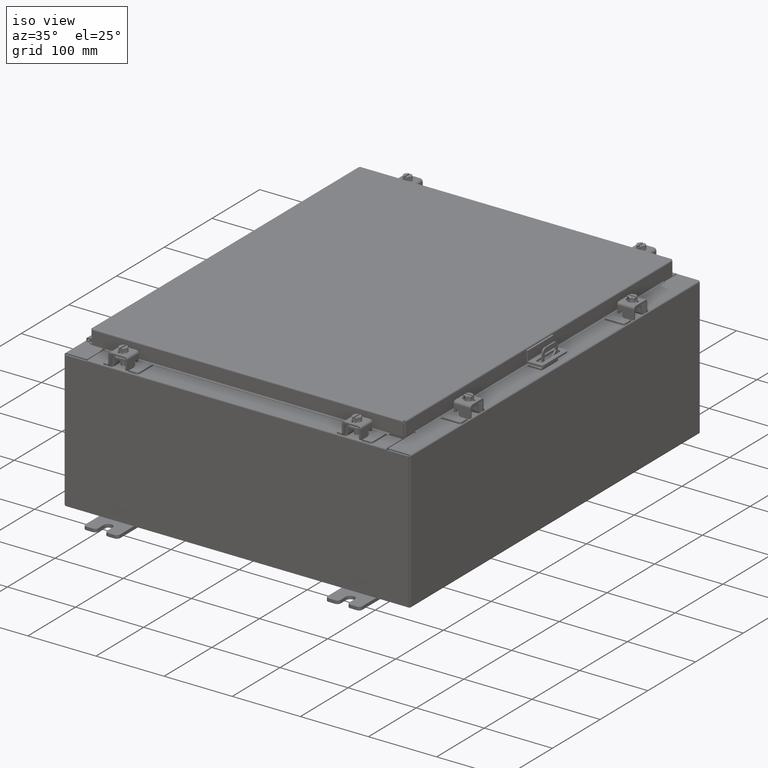
[diagram: clean part render]
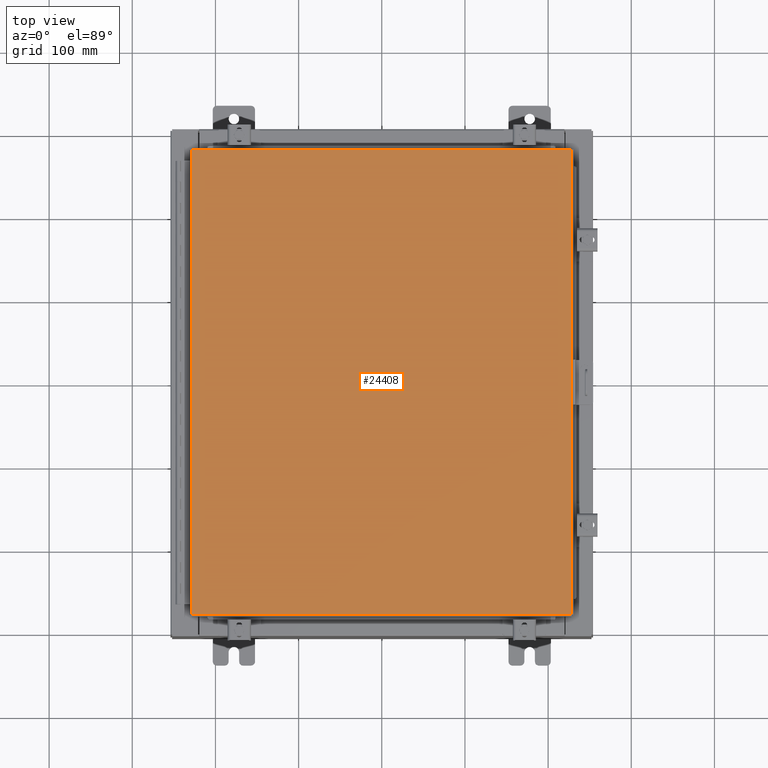
[diagram: tour spotlight — one face highlighted and labeled with its STEP entity id]
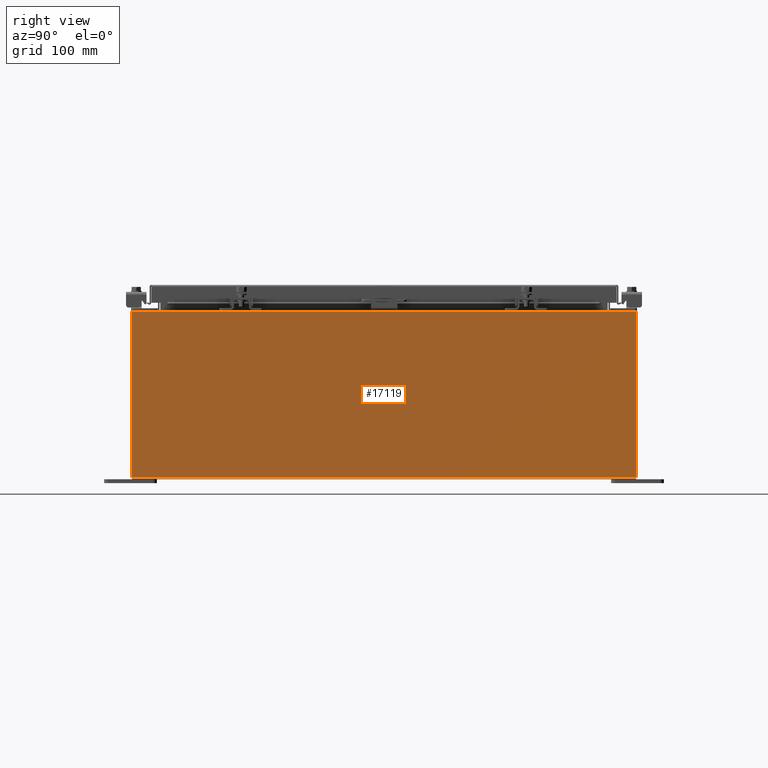
[diagram: tour spotlight — one face highlighted and labeled with its STEP entity id]
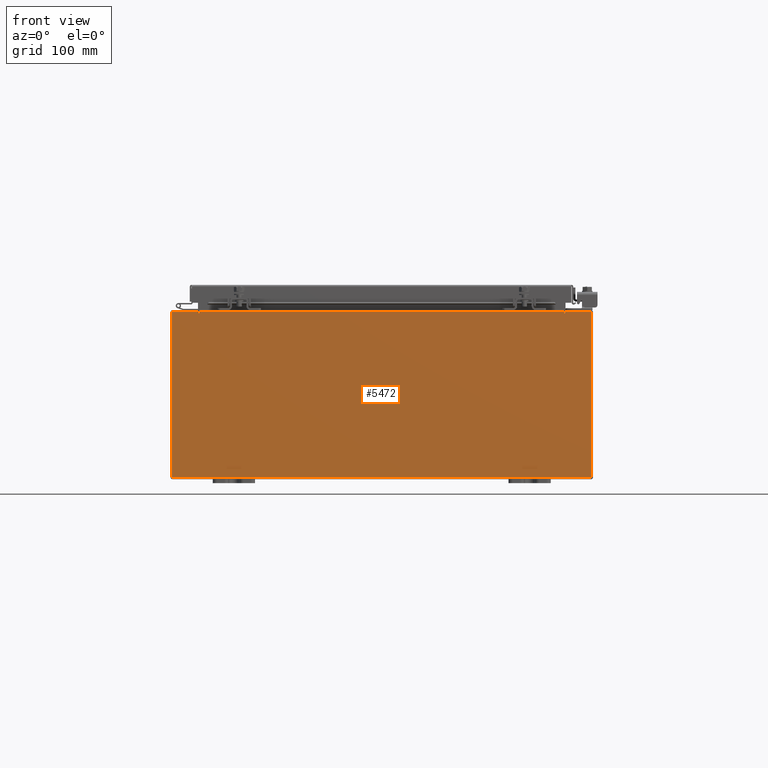
[diagram: tour spotlight — one face highlighted and labeled with its STEP entity id]
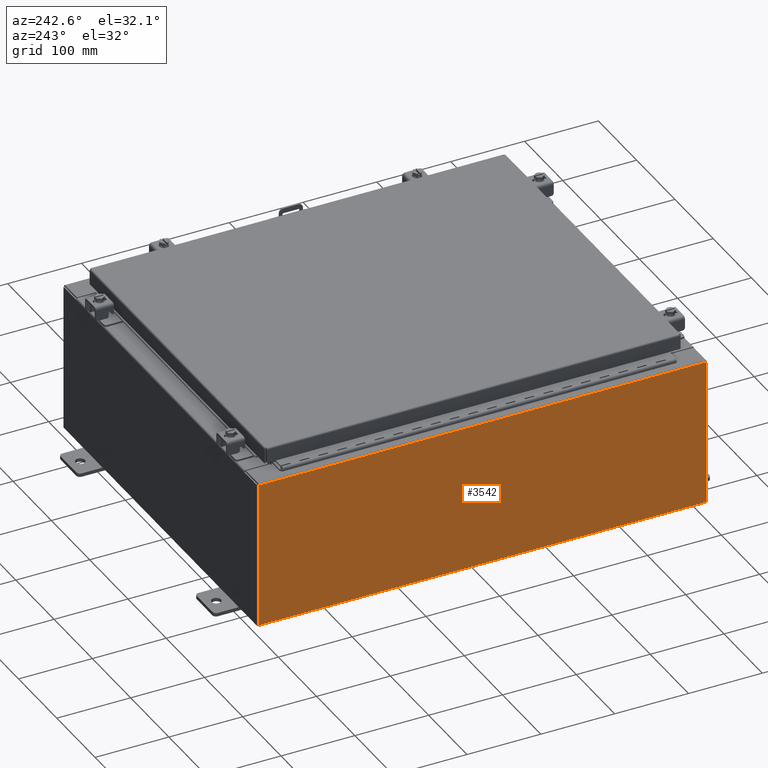
[diagram: tour spotlight — one face highlighted and labeled with its STEP entity id]
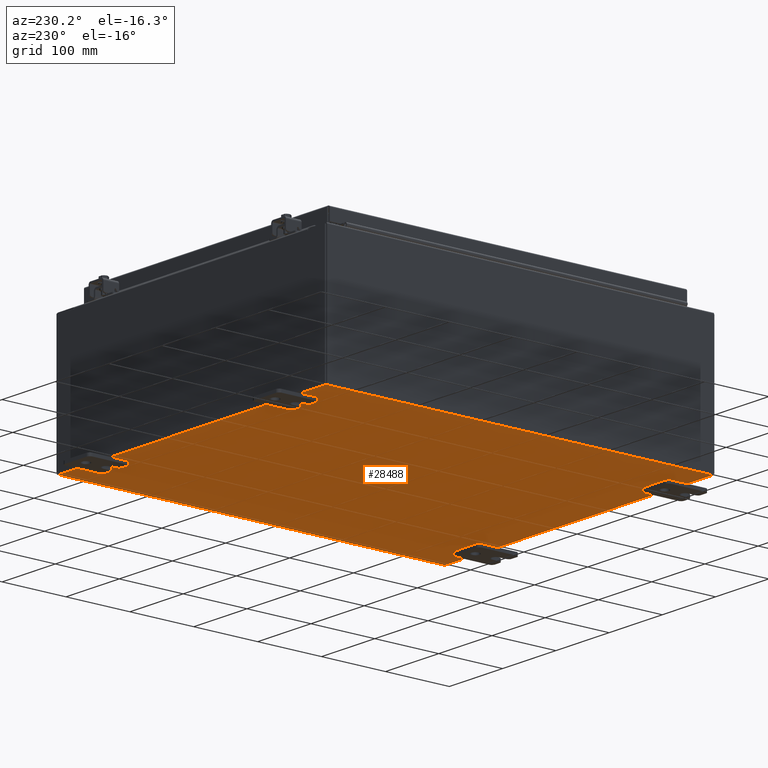
[diagram: tour spotlight — one face highlighted and labeled with its STEP entity id]
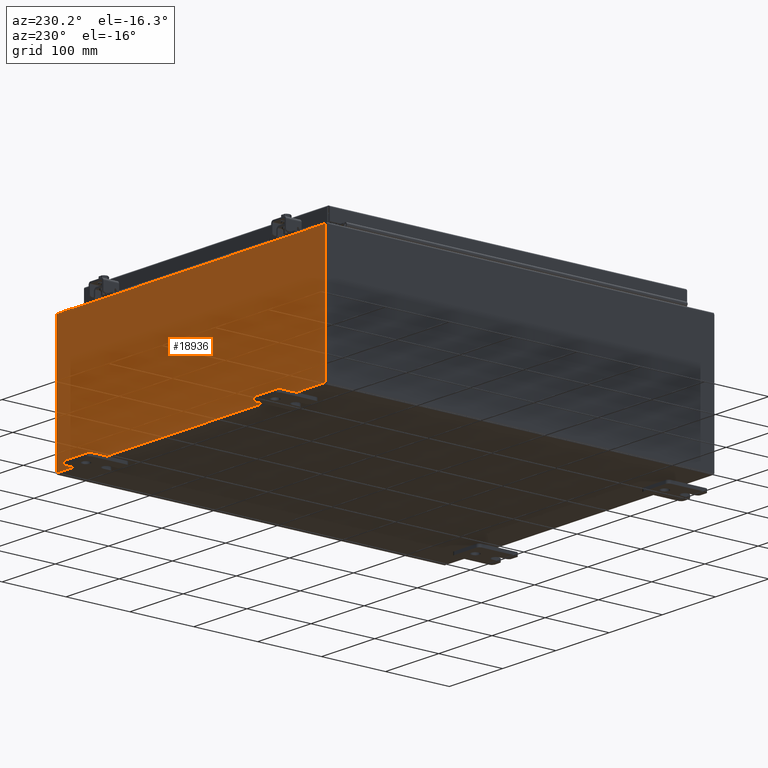
[diagram: tour spotlight — one face highlighted and labeled with its STEP entity id]
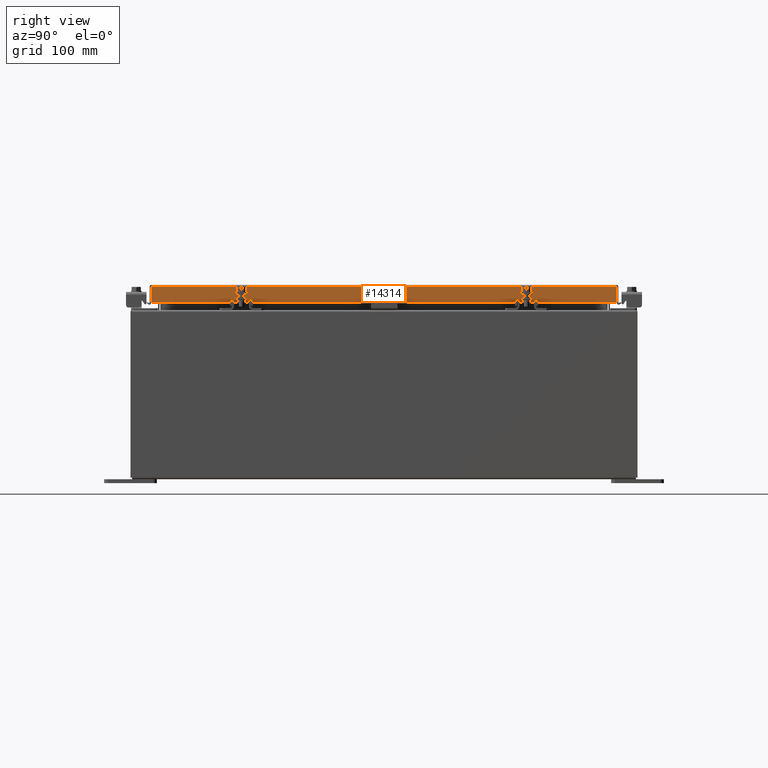
[diagram: tour spotlight — one face highlighted and labeled with its STEP entity id]
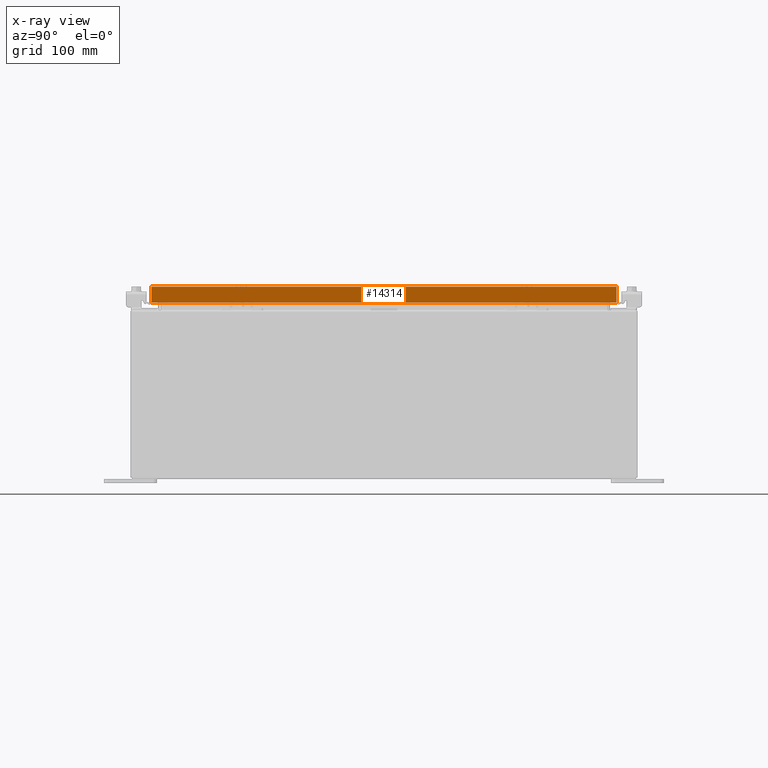
[diagram: x-ray of the same camera — body ghosted, this tour face saturated]
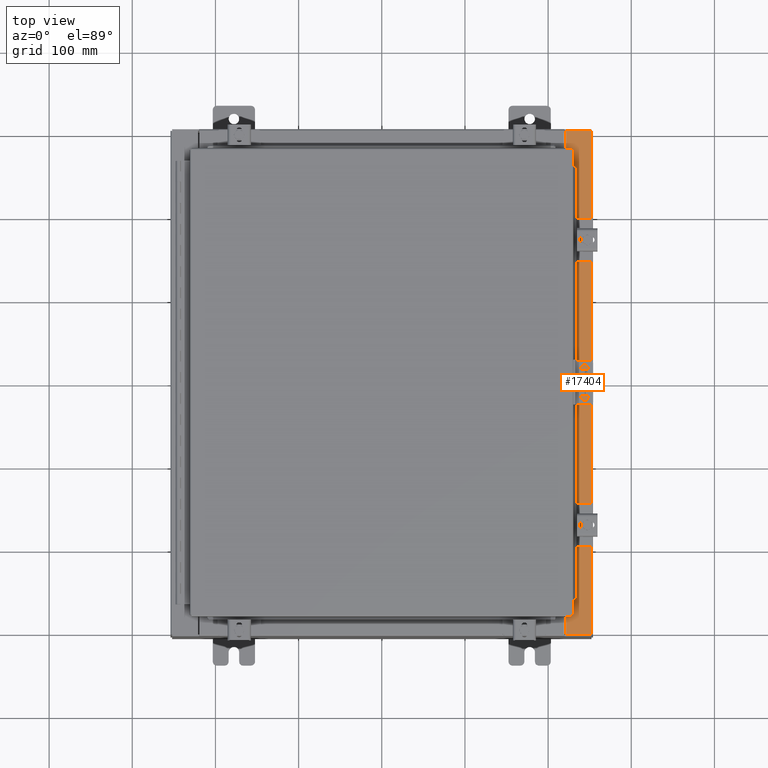
[diagram: tour spotlight — one face highlighted and labeled with its STEP entity id]
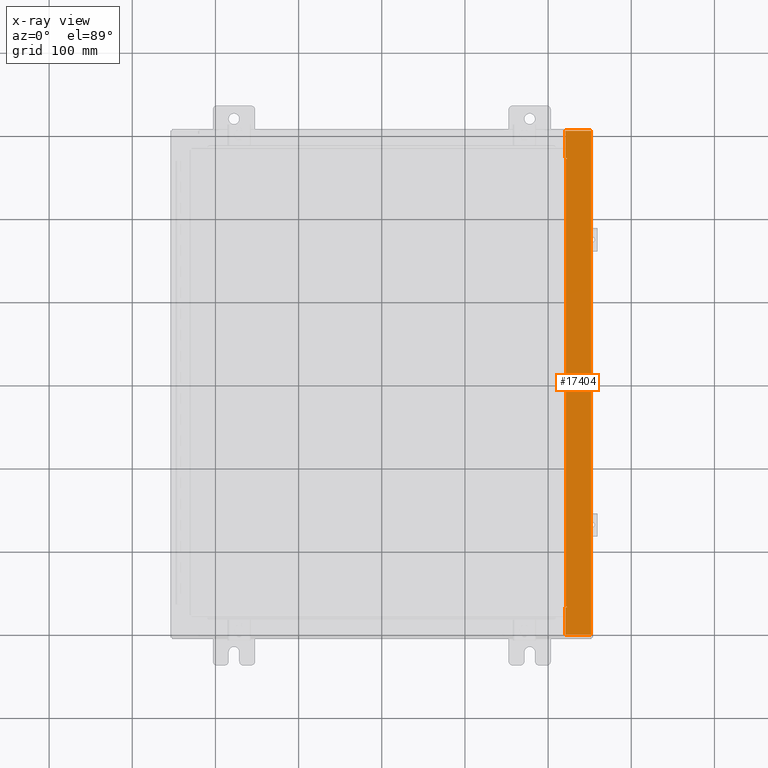
[diagram: x-ray of the same camera — body ghosted, this tour face saturated]
A machine part: a face-by-face anatomy tour. The part has 1709 B-rep faces; the first image is the clean iso view, then the 8 largest visible faces are spotlighted one at a time (largest first), each with its STEP entity span.

Face 1 — top view, entity #24408. In plain terms, the highlighted planar face has unit normal (0, 0, -1).
Definition (entity closure, byte-faithful):
#751 = DIRECTION ( 'NONE',  ( -1.000000000000000000, -0.0000000000000000000, -0.0000000000000000000 ) ) ;
#1484 = EDGE_LOOP ( 'NONE', ( #7647, #15524, #18914, #4699 ) ) ;
#1545 = DIRECTION ( 'NONE',  ( -1.000000000000000000, 0.0000000000000000000, -0.0000000000000000000 ) ) ;
#1667 = DIRECTION ( 'NONE',  ( 1.000000000000000000, -0.0000000000000000000, -0.0000000000000000000 ) ) ;
#2756 = EDGE_CURVE ( 'NONE', #21965, #11310, #19775, .T. ) ;
#4699 = ORIENTED_EDGE ( 'NONE', *, *, #2756, .T. ) ;
#4975 = EDGE_CURVE ( 'NONE', #17559, #21965, #17641, .T. ) ;
#5023 = AXIS2_PLACEMENT_3D ( 'NONE', #29061, #16596, #1545 ) ;
#5585 = CARTESIAN_POINT ( 'NONE',  ( -8.990299999999999500, 11.00630000000000100, -2.048885995248197400E-016 ) ) ;
#5676 = VERTEX_POINT ( 'NONE', #8286 ) ;
#6140 = DIRECTION ( 'NONE',  ( 0.0000000000000000000, -1.000000000000000000, 0.0000000000000000000 ) ) ;
#7647 = ORIENTED_EDGE ( 'NONE', *, *, #17133, .T. ) ;
#8286 = CARTESIAN_POINT ( 'NONE',  ( 8.990299999999997700, -11.00630000000000000, -2.048885995248197400E-016 ) ) ;
#9634 = VECTOR ( 'NONE', #1667, 39.37007874015748100 ) ;
#11310 = VERTEX_POINT ( 'NONE', #20624 ) ;
#12075 = CARTESIAN_POINT ( 'NONE',  ( 8.990299999999997700, -11.00630000000000000, -2.048885995248197400E-016 ) ) ;
#12762 = EDGE_CURVE ( 'NONE', #5676, #17559, #18559, .T. ) ;
#13275 = CARTESIAN_POINT ( 'NONE',  ( 8.990299999999999500, 11.00630000000000000, -2.048885995248197400E-016 ) ) ;
#15524 = ORIENTED_EDGE ( 'NONE', *, *, #12762, .T. ) ;
#16596 = DIRECTION ( 'NONE',  ( 0.0000000000000000000, 0.0000000000000000000, -1.000000000000000000 ) ) ;
#16716 = CARTESIAN_POINT ( 'NONE',  ( -8.990300000000001300, -11.00630000000000100, 8.878505979408856000E-016 ) ) ;
#17133 = EDGE_CURVE ( 'NONE', #11310, #5676, #28838, .T. ) ;
#17559 = VERTEX_POINT ( 'NONE', #21419 ) ;
#17641 = LINE ( 'NONE', #13275, #30192 ) ;
#18559 = LINE ( 'NONE', #12075, #24424 ) ;
#18914 = ORIENTED_EDGE ( 'NONE', *, *, #4975, .T. ) ;
#19775 = LINE ( 'NONE', #26200, #25625 ) ;
#20624 = CARTESIAN_POINT ( 'NONE',  ( -8.990300000000001300, -11.00630000000000100, 8.878505979408856000E-016 ) ) ;
#21419 = CARTESIAN_POINT ( 'NONE',  ( 8.990299999999999500, 11.00630000000000000, -2.048885995248197400E-016 ) ) ;
#21965 = VERTEX_POINT ( 'NONE', #5585 ) ;
#24408 = ADVANCED_FACE ( 'NONE', ( #25587 ), #26543, .F. ) ;
#24424 = VECTOR ( 'NONE', #29581, 39.37007874015748100 ) ;
#25587 = FACE_OUTER_BOUND ( 'NONE', #1484, .T. ) ;
#25625 = VECTOR ( 'NONE', #6140, 39.37007874015748100 ) ;
#26200 = CARTESIAN_POINT ( 'NONE',  ( -8.990299999999999500, 11.00630000000000100, -2.048885995248197400E-016 ) ) ;
#26543 = PLANE ( 'NONE',  #5023 ) ;
#28838 = LINE ( 'NONE', #16716, #9634 ) ;
#29061 = CARTESIAN_POINT ( 'NONE',  ( 0.0000000000000000000, 0.0000000000000000000, 0.0000000000000000000 ) ) ;
#29581 = DIRECTION ( 'NONE',  ( 0.0000000000000000000, 1.000000000000000000, 0.0000000000000000000 ) ) ;
#30192 = VECTOR ( 'NONE', #751, 39.37007874015748100 ) ;

Face 2 — right view, entity #17119. In plain terms, the highlighted planar face has unit normal (-1, 0, 0).
Definition (entity closure, byte-faithful):
#295 = AXIS2_PLACEMENT_3D ( 'NONE', #24039, #16606, #1552 ) ;
#299 = VECTOR ( 'NONE', #2727, 39.37007874015748100 ) ;
#875 = EDGE_CURVE ( 'NONE', #12525, #16799, #19471, .T. ) ;
#1115 = CARTESIAN_POINT ( 'NONE',  ( 10.00000000000002800, -11.92530000000000000, 7.837599999999998300 ) ) ;
#1424 = DIRECTION ( 'NONE',  ( -0.0000000000000000000, -1.000000000000000000, -0.0000000000000000000 ) ) ;
#1552 = DIRECTION ( 'NONE',  ( 3.584876173029202900E-015, 0.0000000000000000000, 1.000000000000000000 ) ) ;
#2021 = EDGE_LOOP ( 'NONE', ( #26948, #20631, #3327, #11830 ) ) ;
#2727 = DIRECTION ( 'NONE',  ( -0.0000000000000000000, -1.000000000000000000, -0.0000000000000000000 ) ) ;
#3327 = ORIENTED_EDGE ( 'NONE', *, *, #32407, .F. ) ;
#4485 = VECTOR ( 'NONE', #19666, 39.37007874015748100 ) ;
#5301 = CARTESIAN_POINT ( 'NONE',  ( 10.00000000000002800, 11.92529999999999800, 7.837599999999992100 ) ) ;
#6453 = CARTESIAN_POINT ( 'NONE',  ( 10.00000000000000000, -11.92530000000000000, 0.01299999999999984700 ) ) ;
#6869 = VECTOR ( 'NONE', #19370, 39.37007874015748100 ) ;
#7728 = LINE ( 'NONE', #27704, #299 ) ;
#8552 = LINE ( 'NONE', #6453, #15252 ) ;
#11772 = VERTEX_POINT ( 'NONE', #15316 ) ;
#11830 = ORIENTED_EDGE ( 'NONE', *, *, #875, .T. ) ;
#12525 = VERTEX_POINT ( 'NONE', #16140 ) ;
#14099 = PLANE ( 'NONE',  #295 ) ;
#15252 = VECTOR ( 'NONE', #1424, 39.37007874015748100 ) ;
#15316 = CARTESIAN_POINT ( 'NONE',  ( 10.00000000000000000, -11.92530000000000000, 0.01299999999999983600 ) ) ;
#16071 = EDGE_CURVE ( 'NONE', #16799, #17528, #7728, .T. ) ;
#16140 = CARTESIAN_POINT ( 'NONE',  ( 10.00000000000000000, 11.92529999999999800, 0.01299999999999984700 ) ) ;
#16606 = DIRECTION ( 'NONE',  ( -1.000000000000000000, 0.0000000000000000000, 3.584876173029202900E-015 ) ) ;
#16799 = VERTEX_POINT ( 'NONE', #5301 ) ;
#17119 = ADVANCED_FACE ( 'NONE', ( #23001 ), #14099, .F. ) ;
#17528 = VERTEX_POINT ( 'NONE', #1115 ) ;
#19370 = DIRECTION ( 'NONE',  ( 3.584876173029202900E-015, 0.0000000000000000000, 1.000000000000000000 ) ) ;
#19471 = LINE ( 'NONE', #20603, #6869 ) ;
#19666 = DIRECTION ( 'NONE',  ( -3.584876173029202900E-015, 0.0000000000000000000, -1.000000000000000000 ) ) ;
#20603 = CARTESIAN_POINT ( 'NONE',  ( 10.00000000000000000, 11.92530000000000000, -3.610957538630361200E-014 ) ) ;
#20631 = ORIENTED_EDGE ( 'NONE', *, *, #22792, .T. ) ;
#22792 = EDGE_CURVE ( 'NONE', #17528, #11772, #24514, .T. ) ;
#23001 = FACE_OUTER_BOUND ( 'NONE', #2021, .T. ) ;
#24039 = CARTESIAN_POINT ( 'NONE',  ( 10.00000000000000000, 0.0000000000000000000, -3.610957538630361200E-014 ) ) ;
#24514 = LINE ( 'NONE', #24563, #4485 ) ;
#24563 = CARTESIAN_POINT ( 'NONE',  ( 10.00000000000000000, -11.92530000000000000, -3.610957538630361200E-014 ) ) ;
#26948 = ORIENTED_EDGE ( 'NONE', *, *, #16071, .T. ) ;
#27704 = CARTESIAN_POINT ( 'NONE',  ( 10.00000000000002800, 11.92530000000000000, 7.837599999999992100 ) ) ;
#32407 = EDGE_CURVE ( 'NONE', #12525, #11772, #8552, .T. ) ;

Face 3 — front view, entity #5472. In plain terms, the highlighted planar face has unit normal (-0, 1, -0).
Definition (entity closure, byte-faithful):
#260 = CARTESIAN_POINT ( 'NONE',  ( 8.674550000000000000, 0.0000000000000000000, 3.874949999999999700 ) ) ;
#704 = EDGE_CURVE ( 'NONE', #16472, #14939, #10822, .T. ) ;
#923 = CARTESIAN_POINT ( 'NONE',  ( 8.674550000000001800, 0.0000000000000000000, 3.925299999999999600 ) ) ;
#966 = DIRECTION ( 'NONE',  ( -1.000000000000000000, -0.0000000000000000000, -0.0000000000000000000 ) ) ;
#967 = ORIENTED_EDGE ( 'NONE', *, *, #14167, .F. ) ;
#1529 = CIRCLE ( 'NONE', #2122, 0.01867500000000003900 ) ;
#1742 = EDGE_CURVE ( 'NONE', #11159, #27804, #27257, .T. ) ;
#1841 = DIRECTION ( 'NONE',  ( -6.510859170600007400E-014, 0.0000000000000000000, -1.000000000000000000 ) ) ;
#2116 = AXIS2_PLACEMENT_3D ( 'NONE', #18840, #20057, #4989 ) ;
#2122 = AXIS2_PLACEMENT_3D ( 'NONE', #12957, #30460, #15482 ) ;
#2415 = AXIS2_PLACEMENT_3D ( 'NONE', #24084, #9062, #26595 ) ;
#3935 = DIRECTION ( 'NONE',  ( 0.0000000000000000000, 0.0000000000000000000, 1.000000000000000000 ) ) ;
#4005 = VECTOR ( 'NONE', #7805, 39.37007874015748100 ) ;
#4311 = LINE ( 'NONE', #11593, #30220 ) ;
#4549 = VECTOR ( 'NONE', #29814, 39.37007874015748100 ) ;
#4782 = CARTESIAN_POINT ( 'NONE',  ( -8.637199999999996400, 1.024442997624098700E-016, 3.912299999999999700 ) ) ;
#4989 = DIRECTION ( 'NONE',  ( 0.0000000000000000000, -0.0000000000000000000, -1.000000000000000000 ) ) ;
#5472 = ADVANCED_FACE ( 'NONE', ( #11738 ), #17519, .F. ) ;
#5715 = EDGE_CURVE ( 'NONE', #14939, #29689, #11323, .T. ) ;
#5887 = CARTESIAN_POINT ( 'NONE',  ( -9.925300000000000000, 0.0000000000000000000, -3.925299999999999600 ) ) ;
#5922 = CARTESIAN_POINT ( 'NONE',  ( -9.925300000000000000, 0.0000000000000000000, 3.925299999999999600 ) ) ;
#5979 = CARTESIAN_POINT ( 'NONE',  ( -9.925300000000000000, 0.0000000000000000000, -3.925299999999999600 ) ) ;
#6775 = EDGE_CURVE ( 'NONE', #13985, #27400, #24802, .T. ) ;
#7303 = VERTEX_POINT ( 'NONE', #8517 ) ;
#7805 = DIRECTION ( 'NONE',  ( 0.0000000000000000000, 0.0000000000000000000, -1.000000000000000000 ) ) ;
#7978 = VECTOR ( 'NONE', #1841, 39.37007874015748100 ) ;
#8270 = CARTESIAN_POINT ( 'NONE',  ( 9.925300000000000000, 0.0000000000000000000, -3.925299999999999600 ) ) ;
#8457 = DIRECTION ( 'NONE',  ( -0.0000000000000000000, -0.0000000000000000000, 1.000000000000000000 ) ) ;
#8466 = EDGE_CURVE ( 'NONE', #12520, #13985, #20017, .T. ) ;
#8517 = CARTESIAN_POINT ( 'NONE',  ( 8.637200000000000000, 0.0000000000000000000, 3.874949999999999700 ) ) ;
#8619 = ORIENTED_EDGE ( 'NONE', *, *, #8466, .F. ) ;
#8999 = CARTESIAN_POINT ( 'NONE',  ( 8.637200000000000000, 0.0000000000000000000, 0.0000000000000000000 ) ) ;
#9062 = DIRECTION ( 'NONE',  ( -0.0000000000000000000, 1.000000000000000000, -0.0000000000000000000 ) ) ;
#9290 = CARTESIAN_POINT ( 'NONE',  ( 8.674549999999747700, -0.0000000000000000000, -5.647877341832665300E-013 ) ) ;
#9376 = ORIENTED_EDGE ( 'NONE', *, *, #13365, .T. ) ;
#10822 = LINE ( 'NONE', #26587, #30027 ) ;
#11159 = VERTEX_POINT ( 'NONE', #4782 ) ;
#11323 = LINE ( 'NONE', #5979, #23874 ) ;
#11593 = CARTESIAN_POINT ( 'NONE',  ( -9.925300000000000000, 0.0000000000000000000, 3.925299999999999600 ) ) ;
#11738 = FACE_OUTER_BOUND ( 'NONE', #18385, .T. ) ;
#12466 = EDGE_CURVE ( 'NONE', #29689, #21175, #26409, .T. ) ;
#12520 = VERTEX_POINT ( 'NONE', #23706 ) ;
#12957 = CARTESIAN_POINT ( 'NONE',  ( 8.655875000000000000, 0.0000000000000000000, 3.874949999999999700 ) ) ;
#12970 = CARTESIAN_POINT ( 'NONE',  ( 8.637200000000000000, 0.0000000000000000000, 3.912299999999999700 ) ) ;
#13184 = VECTOR ( 'NONE', #30375, 39.37007874015748100 ) ;
#13365 = EDGE_CURVE ( 'NONE', #25409, #16472, #4311, .T. ) ;
#13985 = VERTEX_POINT ( 'NONE', #24223 ) ;
#14112 = ORIENTED_EDGE ( 'NONE', *, *, #29246, .F. ) ;
#14167 = EDGE_CURVE ( 'NONE', #27011, #7303, #1529, .T. ) ;
#14469 = ORIENTED_EDGE ( 'NONE', *, *, #28204, .F. ) ;
#14500 = CARTESIAN_POINT ( 'NONE',  ( -8.674549999999996400, 0.0000000000000000000, 3.925299999999999600 ) ) ;
#14832 = ORIENTED_EDGE ( 'NONE', *, *, #25263, .F. ) ;
#14840 = CARTESIAN_POINT ( 'NONE',  ( -9.925300000000000000, 0.0000000000000000000, 3.925299999999999600 ) ) ;
#14939 = VERTEX_POINT ( 'NONE', #8270 ) ;
#15471 = LINE ( 'NONE', #9290, #7978 ) ;
#15482 = DIRECTION ( 'NONE',  ( 0.0000000000000000000, 0.0000000000000000000, -1.000000000000000000 ) ) ;
#16461 = CARTESIAN_POINT ( 'NONE',  ( -8.674549999999996400, -0.0000000000000000000, 0.0000000000000000000 ) ) ;
#16472 = VERTEX_POINT ( 'NONE', #19062 ) ;
#17362 = VECTOR ( 'NONE', #3935, 39.37007874015748100 ) ;
#17372 = LINE ( 'NONE', #27871, #4005 ) ;
#17519 = PLANE ( 'NONE',  #2116 ) ;
#18385 = EDGE_LOOP ( 'NONE', ( #25997, #8619, #14832, #26331, #14112, #967, #14469, #9376, #20752, #24066, #24948, #28778 ) ) ;
#18711 = LINE ( 'NONE', #14840, #4549 ) ;
#18840 = CARTESIAN_POINT ( 'NONE',  ( 0.0000000000000000000, 0.0000000000000000000, 0.0000000000000000000 ) ) ;
#19062 = CARTESIAN_POINT ( 'NONE',  ( 9.925300000000000000, 0.0000000000000000000, 3.925299999999999600 ) ) ;
#20017 = CIRCLE ( 'NONE', #2415, 0.01867500000000003900 ) ;
#20057 = DIRECTION ( 'NONE',  ( 0.0000000000000000000, -1.000000000000000000, 0.0000000000000000000 ) ) ;
#20752 = ORIENTED_EDGE ( 'NONE', *, *, #704, .T. ) ;
#20884 = DIRECTION ( 'NONE',  ( 0.0000000000000000000, 0.0000000000000000000, -1.000000000000000000 ) ) ;
#21175 = VERTEX_POINT ( 'NONE', #29858 ) ;
#21756 = EDGE_CURVE ( 'NONE', #21175, #27400, #18711, .T. ) ;
#23706 = CARTESIAN_POINT ( 'NONE',  ( -8.637199999999996400, -0.0000000000000000000, 3.874949999999999700 ) ) ;
#23874 = VECTOR ( 'NONE', #966, 39.37007874015748100 ) ;
#24019 = DIRECTION ( 'NONE',  ( 0.0000000000000000000, 0.0000000000000000000, 1.000000000000000000 ) ) ;
#24066 = ORIENTED_EDGE ( 'NONE', *, *, #5715, .T. ) ;
#24084 = CARTESIAN_POINT ( 'NONE',  ( -8.655874999999996400, 0.0000000000000000000, 3.874949999999999700 ) ) ;
#24223 = CARTESIAN_POINT ( 'NONE',  ( -8.674549999999996400, 0.0000000000000000000, 3.874949999999999700 ) ) ;
#24802 = LINE ( 'NONE', #16461, #17362 ) ;
#24948 = ORIENTED_EDGE ( 'NONE', *, *, #12466, .T. ) ;
#25263 = EDGE_CURVE ( 'NONE', #11159, #12520, #17372, .T. ) ;
#25409 = VERTEX_POINT ( 'NONE', #923 ) ;
#25997 = ORIENTED_EDGE ( 'NONE', *, *, #6775, .F. ) ;
#26331 = ORIENTED_EDGE ( 'NONE', *, *, #1742, .T. ) ;
#26409 = LINE ( 'NONE', #5922, #30727 ) ;
#26587 = CARTESIAN_POINT ( 'NONE',  ( 9.925300000000000000, 0.0000000000000000000, 3.925299999999999600 ) ) ;
#26595 = DIRECTION ( 'NONE',  ( 0.0000000000000000000, 0.0000000000000000000, -1.000000000000000000 ) ) ;
#27011 = VERTEX_POINT ( 'NONE', #260 ) ;
#27127 = VECTOR ( 'NONE', #24019, 39.37007874015748100 ) ;
#27257 = LINE ( 'NONE', #28484, #13184 ) ;
#27400 = VERTEX_POINT ( 'NONE', #14500 ) ;
#27804 = VERTEX_POINT ( 'NONE', #12970 ) ;
#27871 = CARTESIAN_POINT ( 'NONE',  ( -8.637199999999996400, -0.0000000000000000000, 0.0000000000000000000 ) ) ;
#28204 = EDGE_CURVE ( 'NONE', #25409, #27011, #15471, .T. ) ;
#28484 = CARTESIAN_POINT ( 'NONE',  ( -8.637200000000000000, 1.024442997624098700E-016, 3.912299999999999700 ) ) ;
#28778 = ORIENTED_EDGE ( 'NONE', *, *, #21756, .T. ) ;
#29246 = EDGE_CURVE ( 'NONE', #7303, #27804, #32220, .T. ) ;
#29689 = VERTEX_POINT ( 'NONE', #5887 ) ;
#29814 = DIRECTION ( 'NONE',  ( 1.000000000000000000, 0.0000000000000000000, 0.0000000000000000000 ) ) ;
#29858 = CARTESIAN_POINT ( 'NONE',  ( -9.925300000000000000, 0.0000000000000000000, 3.925299999999999600 ) ) ;
#30027 = VECTOR ( 'NONE', #20884, 39.37007874015748100 ) ;
#30220 = VECTOR ( 'NONE', #31730, 39.37007874015748100 ) ;
#30375 = DIRECTION ( 'NONE',  ( 1.000000000000000000, 0.0000000000000000000, 0.0000000000000000000 ) ) ;
#30460 = DIRECTION ( 'NONE',  ( -0.0000000000000000000, 1.000000000000000000, -0.0000000000000000000 ) ) ;
#30727 = VECTOR ( 'NONE', #8457, 39.37007874015748100 ) ;
#31730 = DIRECTION ( 'NONE',  ( 1.000000000000000000, 0.0000000000000000000, 0.0000000000000000000 ) ) ;
#32220 = LINE ( 'NONE', #8999, #27127 ) ;

Face 4 — auxiliary view, entity #3542. In plain terms, the highlighted planar face has unit normal (1, 0, 0).
Definition (entity closure, byte-faithful):
#223 = CARTESIAN_POINT ( 'NONE',  ( -10.00000000000002800, -11.92530000000000000, 7.837599999999999200 ) ) ;
#2536 = VECTOR ( 'NONE', #22923, 39.37007874015748100 ) ;
#2736 = DIRECTION ( 'NONE',  ( 0.0000000000000000000, 1.000000000000000000, 0.0000000000000000000 ) ) ;
#3542 = ADVANCED_FACE ( 'NONE', ( #31070 ), #17189, .F. ) ;
#4646 = DIRECTION ( 'NONE',  ( 3.584876173029202900E-015, 0.0000000000000000000, -1.000000000000000000 ) ) ;
#4763 = AXIS2_PLACEMENT_3D ( 'NONE', #14694, #19725, #4646 ) ;
#4884 = EDGE_CURVE ( 'NONE', #6313, #21964, #25086, .T. ) ;
#6313 = VERTEX_POINT ( 'NONE', #13451 ) ;
#8081 = DIRECTION ( 'NONE',  ( -3.584876173029202900E-015, 0.0000000000000000000, 1.000000000000000000 ) ) ;
#8512 = LINE ( 'NONE', #24991, #21104 ) ;
#10144 = EDGE_CURVE ( 'NONE', #6313, #13367, #8512, .T. ) ;
#11768 = VECTOR ( 'NONE', #8081, 39.37007874015748100 ) ;
#12534 = DIRECTION ( 'NONE',  ( -0.0000000000000000000, 1.000000000000000000, -0.0000000000000000000 ) ) ;
#13367 = VERTEX_POINT ( 'NONE', #14251 ) ;
#13451 = CARTESIAN_POINT ( 'NONE',  ( -10.00000000000000000, -11.92529999999999800, 0.01299999999999984700 ) ) ;
#14251 = CARTESIAN_POINT ( 'NONE',  ( -10.00000000000000000, 11.92530000000000000, 0.01299999999999983600 ) ) ;
#14694 = CARTESIAN_POINT ( 'NONE',  ( -10.00000000000000000, 0.0000000000000000000, -3.610957538630361200E-014 ) ) ;
#15687 = VECTOR ( 'NONE', #2736, 39.37007874015748100 ) ;
#15876 = LINE ( 'NONE', #25401, #2536 ) ;
#16414 = ORIENTED_EDGE ( 'NONE', *, *, #4884, .T. ) ;
#17189 = PLANE ( 'NONE',  #4763 ) ;
#17937 = EDGE_CURVE ( 'NONE', #25934, #13367, #15876, .T. ) ;
#18100 = CARTESIAN_POINT ( 'NONE',  ( -10.00000000000002800, -11.92529999999999500, 7.837599999999999200 ) ) ;
#19725 = DIRECTION ( 'NONE',  ( 1.000000000000000000, 0.0000000000000000000, 3.584876173029202900E-015 ) ) ;
#21104 = VECTOR ( 'NONE', #12534, 39.37007874015748100 ) ;
#21897 = ORIENTED_EDGE ( 'NONE', *, *, #30930, .T. ) ;
#21964 = VERTEX_POINT ( 'NONE', #18100 ) ;
#22923 = DIRECTION ( 'NONE',  ( 3.584876173029202900E-015, 0.0000000000000000000, -1.000000000000000000 ) ) ;
#23131 = CARTESIAN_POINT ( 'NONE',  ( -10.00000000000000000, -11.92530000000000000, -3.610957538630361200E-014 ) ) ;
#24991 = CARTESIAN_POINT ( 'NONE',  ( -10.00000000000000000, 11.92530000000000000, 0.01299999999999984700 ) ) ;
#25086 = LINE ( 'NONE', #23131, #11768 ) ;
#25401 = CARTESIAN_POINT ( 'NONE',  ( -10.00000000000000000, 11.92530000000000000, -3.610957538630361200E-014 ) ) ;
#25934 = VERTEX_POINT ( 'NONE', #28059 ) ;
#27176 = ORIENTED_EDGE ( 'NONE', *, *, #17937, .T. ) ;
#28059 = CARTESIAN_POINT ( 'NONE',  ( -10.00000000000002800, 11.92530000000000000, 7.837599999999999200 ) ) ;
#28976 = LINE ( 'NONE', #223, #15687 ) ;
#30930 = EDGE_CURVE ( 'NONE', #21964, #25934, #28976, .T. ) ;
#31070 = FACE_OUTER_BOUND ( 'NONE', #31807, .T. ) ;
#31689 = ORIENTED_EDGE ( 'NONE', *, *, #10144, .F. ) ;
#31807 = EDGE_LOOP ( 'NONE', ( #21897, #27176, #31689, #16414 ) ) ;

Face 5 — auxiliary view, entity #28488. In plain terms, the highlighted planar face has unit normal (0, 0, -1).
Definition (entity closure, byte-faithful):
#39 = CARTESIAN_POINT ( 'NONE',  ( -9.912300000000000100, -11.92529999999999800, -0.07469999999999994700 ) ) ;
#349 = DIRECTION ( 'NONE',  ( -0.0000000000000000000, 1.000000000000000000, -0.0000000000000000000 ) ) ;
#532 = DIRECTION ( 'NONE',  ( -1.000000000000000000, 0.0000000000000000000, -0.0000000000000000000 ) ) ;
#608 = VECTOR ( 'NONE', #349, 39.37007874015748100 ) ;
#3369 = VERTEX_POINT ( 'NONE', #31313 ) ;
#4221 = ORIENTED_EDGE ( 'NONE', *, *, #7207, .F. ) ;
#7115 = LINE ( 'NONE', #10729, #25550 ) ;
#7207 = EDGE_CURVE ( 'NONE', #8044, #3369, #7115, .T. ) ;
#7238 = LINE ( 'NONE', #22836, #608 ) ;
#7957 = CARTESIAN_POINT ( 'NONE',  ( 0.0000000000000000000, 0.0000000000000000000, -0.07470000000000000300 ) ) ;
#8044 = VERTEX_POINT ( 'NONE', #9862 ) ;
#8290 = ORIENTED_EDGE ( 'NONE', *, *, #22998, .T. ) ;
#8404 = CARTESIAN_POINT ( 'NONE',  ( 9.912300000000000100, 11.92530000000000000, -0.07469999999999994700 ) ) ;
#9862 = CARTESIAN_POINT ( 'NONE',  ( 9.912300000000000100, 11.92529999999999800, -0.07469999999999994700 ) ) ;
#10729 = CARTESIAN_POINT ( 'NONE',  ( -10.00000000000000000, 11.92530000000000000, -0.07470000000000000300 ) ) ;
#11230 = ORIENTED_EDGE ( 'NONE', *, *, #20827, .T. ) ;
#12256 = VERTEX_POINT ( 'NONE', #39 ) ;
#12910 = VECTOR ( 'NONE', #23436, 39.37007874015748100 ) ;
#13031 = PLANE ( 'NONE',  #28239 ) ;
#13082 = CARTESIAN_POINT ( 'NONE',  ( -10.00000000000000000, -11.92530000000000000, -0.07470000000000000300 ) ) ;
#13237 = LINE ( 'NONE', #13082, #20692 ) ;
#15559 = DIRECTION ( 'NONE',  ( 0.0000000000000000000, 0.0000000000000000000, -1.000000000000000000 ) ) ;
#15597 = DIRECTION ( 'NONE',  ( 1.000000000000000000, 0.0000000000000000000, 0.0000000000000000000 ) ) ;
#17999 = CARTESIAN_POINT ( 'NONE',  ( 9.912300000000000100, -11.92530000000000000, -0.07470000000000000300 ) ) ;
#19254 = VERTEX_POINT ( 'NONE', #17999 ) ;
#19579 = LINE ( 'NONE', #8404, #12910 ) ;
#20150 = FACE_OUTER_BOUND ( 'NONE', #22708, .T. ) ;
#20692 = VECTOR ( 'NONE', #15597, 39.37007874015748100 ) ;
#20827 = EDGE_CURVE ( 'NONE', #8044, #19254, #19579, .T. ) ;
#21940 = EDGE_CURVE ( 'NONE', #12256, #19254, #13237, .T. ) ;
#22708 = EDGE_LOOP ( 'NONE', ( #25562, #8290, #4221, #11230 ) ) ;
#22836 = CARTESIAN_POINT ( 'NONE',  ( -9.912300000000000100, -11.92530000000000000, -0.07469999999999994700 ) ) ;
#22998 = EDGE_CURVE ( 'NONE', #12256, #3369, #7238, .T. ) ;
#23436 = DIRECTION ( 'NONE',  ( -0.0000000000000000000, -1.000000000000000000, -0.0000000000000000000 ) ) ;
#25550 = VECTOR ( 'NONE', #25724, 39.37007874015748100 ) ;
#25562 = ORIENTED_EDGE ( 'NONE', *, *, #21940, .F. ) ;
#25724 = DIRECTION ( 'NONE',  ( -1.000000000000000000, -0.0000000000000000000, -0.0000000000000000000 ) ) ;
#28239 = AXIS2_PLACEMENT_3D ( 'NONE', #7957, #15559, #532 ) ;
#28488 = ADVANCED_FACE ( 'NONE', ( #20150 ), #13031, .T. ) ;
#31313 = CARTESIAN_POINT ( 'NONE',  ( -9.912300000000000100, 11.92530000000000000, -0.07470000000000000300 ) ) ;

Face 6 — auxiliary view, entity #18936. In plain terms, the highlighted planar face has unit normal (0, -1, 0).
Definition (entity closure, byte-faithful):
#67 = VECTOR ( 'NONE', #24978, 39.37007874015748100 ) ;
#72 = ORIENTED_EDGE ( 'NONE', *, *, #8633, .T. ) ;
#984 = VECTOR ( 'NONE', #6847, 39.37007874015748100 ) ;
#1013 = LINE ( 'NONE', #5165, #13596 ) ;
#2157 = CARTESIAN_POINT ( 'NONE',  ( -9.925300000000000000, 0.0000000000000000000, 3.925299999999999600 ) ) ;
#2419 = CARTESIAN_POINT ( 'NONE',  ( 9.925300000000000000, 0.0000000000000000000, 3.925299999999999600 ) ) ;
#2860 = VECTOR ( 'NONE', #16187, 39.37007874015748100 ) ;
#2915 = DIRECTION ( 'NONE',  ( 1.000000000000000000, 0.0000000000000000000, 0.0000000000000000000 ) ) ;
#3117 = LINE ( 'NONE', #27894, #28987 ) ;
#3763 = DIRECTION ( 'NONE',  ( -6.510859170600007400E-014, 0.0000000000000000000, -1.000000000000000000 ) ) ;
#4563 = VECTOR ( 'NONE', #28359, 39.37007874015748100 ) ;
#4589 = ORIENTED_EDGE ( 'NONE', *, *, #30093, .F. ) ;
#4859 = DIRECTION ( 'NONE',  ( -0.0000000000000000000, 1.000000000000000000, -0.0000000000000000000 ) ) ;
#4946 = CARTESIAN_POINT ( 'NONE',  ( -8.637200000000000000, 1.024442997624098700E-016, 3.912299999999999700 ) ) ;
#5165 = CARTESIAN_POINT ( 'NONE',  ( -9.925300000000000000, 0.0000000000000000000, -3.925299999999999600 ) ) ;
#5503 = EDGE_CURVE ( 'NONE', #29355, #25781, #23510, .T. ) ;
#5895 = CIRCLE ( 'NONE', #28888, 0.01867500000000003900 ) ;
#6202 = VERTEX_POINT ( 'NONE', #10564 ) ;
#6524 = ORIENTED_EDGE ( 'NONE', *, *, #22348, .T. ) ;
#6699 = DIRECTION ( 'NONE',  ( 0.0000000000000000000, -0.0000000000000000000, -1.000000000000000000 ) ) ;
#6825 = EDGE_LOOP ( 'NONE', ( #23916, #28712, #22646, #6524, #24925, #4589, #22042, #72, #31077, #30766, #23460, #9369 ) ) ;
#6847 = DIRECTION ( 'NONE',  ( 0.0000000000000000000, 0.0000000000000000000, 1.000000000000000000 ) ) ;
#7335 = CARTESIAN_POINT ( 'NONE',  ( -8.674549999999996400, 0.0000000000000000000, 3.925299999999999600 ) ) ;
#7817 = CIRCLE ( 'NONE', #16202, 0.01867500000000003900 ) ;
#8633 = EDGE_CURVE ( 'NONE', #6202, #11929, #21191, .T. ) ;
#8805 = VERTEX_POINT ( 'NONE', #12913 ) ;
#9096 = DIRECTION ( 'NONE',  ( -0.0000000000000000000, 1.000000000000000000, -0.0000000000000000000 ) ) ;
#9138 = FACE_OUTER_BOUND ( 'NONE', #6825, .T. ) ;
#9369 = ORIENTED_EDGE ( 'NONE', *, *, #14809, .T. ) ;
#9382 = VECTOR ( 'NONE', #17181, 39.37007874015748100 ) ;
#9911 = CARTESIAN_POINT ( 'NONE',  ( -9.925300000000000000, 0.0000000000000000000, 3.925299999999999600 ) ) ;
#10155 = VECTOR ( 'NONE', #22675, 39.37007874015748100 ) ;
#10219 = DIRECTION ( 'NONE',  ( -1.000000000000000000, -0.0000000000000000000, -0.0000000000000000000 ) ) ;
#10564 = CARTESIAN_POINT ( 'NONE',  ( 8.674550000000001800, 0.0000000000000000000, 3.925299999999999600 ) ) ;
#10624 = VERTEX_POINT ( 'NONE', #31754 ) ;
#11621 = EDGE_CURVE ( 'NONE', #15891, #10624, #27628, .T. ) ;
#11659 = CARTESIAN_POINT ( 'NONE',  ( 0.0000000000000000000, 0.0000000000000000000, 0.0000000000000000000 ) ) ;
#11929 = VERTEX_POINT ( 'NONE', #13459 ) ;
#12913 = CARTESIAN_POINT ( 'NONE',  ( -8.637199999999996400, -0.0000000000000000000, 3.874949999999999700 ) ) ;
#13389 = CARTESIAN_POINT ( 'NONE',  ( -8.637199999999996400, -0.0000000000000000000, 0.0000000000000000000 ) ) ;
#13459 = CARTESIAN_POINT ( 'NONE',  ( 9.925300000000000000, 0.0000000000000000000, 3.925299999999999600 ) ) ;
#13596 = VECTOR ( 'NONE', #10219, 39.37007874015748100 ) ;
#13965 = EDGE_CURVE ( 'NONE', #8805, #29355, #7817, .T. ) ;
#14809 = EDGE_CURVE ( 'NONE', #22329, #25781, #3117, .T. ) ;
#15891 = VERTEX_POINT ( 'NONE', #24330 ) ;
#16187 = DIRECTION ( 'NONE',  ( -0.0000000000000000000, -0.0000000000000000000, 1.000000000000000000 ) ) ;
#16202 = AXIS2_PLACEMENT_3D ( 'NONE', #24115, #9096, #26622 ) ;
#16210 = LINE ( 'NONE', #18596, #2860 ) ;
#16245 = EDGE_CURVE ( 'NONE', #21393, #8805, #30480, .T. ) ;
#17181 = DIRECTION ( 'NONE',  ( 1.000000000000000000, 0.0000000000000000000, 0.0000000000000000000 ) ) ;
#17616 = CARTESIAN_POINT ( 'NONE',  ( -8.674549999999996400, -0.0000000000000000000, 0.0000000000000000000 ) ) ;
#17934 = CARTESIAN_POINT ( 'NONE',  ( 9.925300000000000000, 0.0000000000000000000, -3.925299999999999600 ) ) ;
#18596 = CARTESIAN_POINT ( 'NONE',  ( -9.925300000000000000, 0.0000000000000000000, 3.925299999999999600 ) ) ;
#18606 = VERTEX_POINT ( 'NONE', #17934 ) ;
#18936 = ADVANCED_FACE ( 'NONE', ( #9138 ), #31687, .F. ) ;
#19295 = CARTESIAN_POINT ( 'NONE',  ( -9.925300000000000000, 0.0000000000000000000, -3.925299999999999600 ) ) ;
#19930 = CARTESIAN_POINT ( 'NONE',  ( 8.655875000000000000, 0.0000000000000000000, 3.874949999999999700 ) ) ;
#20089 = AXIS2_PLACEMENT_3D ( 'NONE', #11659, #21774, #6699 ) ;
#21191 = LINE ( 'NONE', #2157, #9382 ) ;
#21393 = VERTEX_POINT ( 'NONE', #28316 ) ;
#21774 = DIRECTION ( 'NONE',  ( 0.0000000000000000000, -1.000000000000000000, 0.0000000000000000000 ) ) ;
#22042 = ORIENTED_EDGE ( 'NONE', *, *, #31758, .F. ) ;
#22329 = VERTEX_POINT ( 'NONE', #9911 ) ;
#22348 = EDGE_CURVE ( 'NONE', #21393, #10624, #23009, .T. ) ;
#22404 = VECTOR ( 'NONE', #3763, 39.37007874015748100 ) ;
#22452 = DIRECTION ( 'NONE',  ( 0.0000000000000000000, 0.0000000000000000000, -1.000000000000000000 ) ) ;
#22536 = DIRECTION ( 'NONE',  ( 1.000000000000000000, 0.0000000000000000000, 0.0000000000000000000 ) ) ;
#22646 = ORIENTED_EDGE ( 'NONE', *, *, #16245, .F. ) ;
#22675 = DIRECTION ( 'NONE',  ( 0.0000000000000000000, 0.0000000000000000000, 1.000000000000000000 ) ) ;
#23009 = LINE ( 'NONE', #4946, #30434 ) ;
#23299 = CARTESIAN_POINT ( 'NONE',  ( 8.674550000000000000, 0.0000000000000000000, 3.874949999999999700 ) ) ;
#23460 = ORIENTED_EDGE ( 'NONE', *, *, #28648, .T. ) ;
#23510 = LINE ( 'NONE', #17616, #10155 ) ;
#23916 = ORIENTED_EDGE ( 'NONE', *, *, #5503, .F. ) ;
#24115 = CARTESIAN_POINT ( 'NONE',  ( -8.655874999999996400, 0.0000000000000000000, 3.874949999999999700 ) ) ;
#24228 = VERTEX_POINT ( 'NONE', #23299 ) ;
#24330 = CARTESIAN_POINT ( 'NONE',  ( 8.637200000000000000, 0.0000000000000000000, 3.874949999999999700 ) ) ;
#24448 = CARTESIAN_POINT ( 'NONE',  ( -8.674549999999996400, 0.0000000000000000000, 3.874949999999999700 ) ) ;
#24925 = ORIENTED_EDGE ( 'NONE', *, *, #11621, .F. ) ;
#24978 = DIRECTION ( 'NONE',  ( 0.0000000000000000000, 0.0000000000000000000, -1.000000000000000000 ) ) ;
#25781 = VERTEX_POINT ( 'NONE', #7335 ) ;
#25840 = LINE ( 'NONE', #28868, #22404 ) ;
#26240 = VERTEX_POINT ( 'NONE', #19295 ) ;
#26622 = DIRECTION ( 'NONE',  ( 0.0000000000000000000, 0.0000000000000000000, -1.000000000000000000 ) ) ;
#26717 = LINE ( 'NONE', #2419, #67 ) ;
#26910 = CARTESIAN_POINT ( 'NONE',  ( 8.637200000000000000, 0.0000000000000000000, 0.0000000000000000000 ) ) ;
#26967 = EDGE_CURVE ( 'NONE', #18606, #26240, #1013, .T. ) ;
#27628 = LINE ( 'NONE', #26910, #984 ) ;
#27894 = CARTESIAN_POINT ( 'NONE',  ( -9.925300000000000000, 0.0000000000000000000, 3.925299999999999600 ) ) ;
#28316 = CARTESIAN_POINT ( 'NONE',  ( -8.637199999999996400, 1.024442997624098700E-016, 3.912299999999999700 ) ) ;
#28359 = DIRECTION ( 'NONE',  ( 0.0000000000000000000, 0.0000000000000000000, -1.000000000000000000 ) ) ;
#28648 = EDGE_CURVE ( 'NONE', #26240, #22329, #16210, .T. ) ;
#28712 = ORIENTED_EDGE ( 'NONE', *, *, #13965, .F. ) ;
#28868 = CARTESIAN_POINT ( 'NONE',  ( 8.674549999999747700, -0.0000000000000000000, -5.647877341832665300E-013 ) ) ;
#28888 = AXIS2_PLACEMENT_3D ( 'NONE', #19930, #4859, #22452 ) ;
#28987 = VECTOR ( 'NONE', #2915, 39.37007874015748100 ) ;
#29355 = VERTEX_POINT ( 'NONE', #24448 ) ;
#29458 = EDGE_CURVE ( 'NONE', #11929, #18606, #26717, .T. ) ;
#30093 = EDGE_CURVE ( 'NONE', #24228, #15891, #5895, .T. ) ;
#30434 = VECTOR ( 'NONE', #22536, 39.37007874015748100 ) ;
#30480 = LINE ( 'NONE', #13389, #4563 ) ;
#30766 = ORIENTED_EDGE ( 'NONE', *, *, #26967, .T. ) ;
#31077 = ORIENTED_EDGE ( 'NONE', *, *, #29458, .T. ) ;
#31687 = PLANE ( 'NONE',  #20089 ) ;
#31754 = CARTESIAN_POINT ( 'NONE',  ( 8.637200000000000000, 0.0000000000000000000, 3.912299999999999700 ) ) ;
#31758 = EDGE_CURVE ( 'NONE', #6202, #24228, #25840, .T. ) ;

Face 7 — right view, entity #14314. An x-ray twin of the same camera follows (body ghosted, this face saturated) — the face is partly hidden behind the body. In plain terms, the highlighted planar face has unit normal (1, 0, 0).
Definition (entity closure, byte-faithful):
#319 = VERTEX_POINT ( 'NONE', #6990 ) ;
#562 = CARTESIAN_POINT ( 'NONE',  ( 9.078000000000001200, -11.09399999999999900, -0.8499999999999996400 ) ) ;
#1007 = VECTOR ( 'NONE', #14316, 39.37007874015748100 ) ;
#1153 = EDGE_CURVE ( 'NONE', #6437, #27332, #4092, .T. ) ;
#2646 = EDGE_CURVE ( 'NONE', #11176, #319, #15477, .T. ) ;
#3068 = VECTOR ( 'NONE', #10555, 39.37007874015748100 ) ;
#3482 = DIRECTION ( 'NONE',  ( 1.000000000000000000, 0.0000000000000000000, 2.818880942772360100E-015 ) ) ;
#3981 = DIRECTION ( 'NONE',  ( 0.0000000000000000000, -1.000000000000000000, 0.0000000000000000000 ) ) ;
#4092 = LINE ( 'NONE', #16963, #23349 ) ;
#6437 = VERTEX_POINT ( 'NONE', #24028 ) ;
#6990 = CARTESIAN_POINT ( 'NONE',  ( 9.077999999999999400, -11.00515786437626900, -0.08770000000000007000 ) ) ;
#7643 = LINE ( 'NONE', #9235, #1007 ) ;
#7769 = VERTEX_POINT ( 'NONE', #27773 ) ;
#8347 = CARTESIAN_POINT ( 'NONE',  ( 9.077999999999999400, 0.0000000000000000000, -0.08770000000000007000 ) ) ;
#8775 = VECTOR ( 'NONE', #13431, 39.37007874015748100 ) ;
#9235 = CARTESIAN_POINT ( 'NONE',  ( 9.077999999999999400, 11.00515786437626900, 1.026992214834840500E-013 ) ) ;
#9276 = EDGE_CURVE ( 'NONE', #23985, #6437, #29726, .T. ) ;
#10555 = DIRECTION ( 'NONE',  ( 0.0000000000000000000, -1.000000000000000000, 0.0000000000000000000 ) ) ;
#10946 = FACE_OUTER_BOUND ( 'NONE', #12221, .T. ) ;
#11176 = VERTEX_POINT ( 'NONE', #24965 ) ;
#12221 = EDGE_LOOP ( 'NONE', ( #22743, #15604, #22234, #24484, #20122, #26272 ) ) ;
#13431 = DIRECTION ( 'NONE',  ( 0.0000000000000000000, -1.000000000000000000, 0.0000000000000000000 ) ) ;
#13513 = PLANE ( 'NONE',  #28982 ) ;
#14206 = EDGE_CURVE ( 'NONE', #7769, #23985, #24304, .T. ) ;
#14314 = ADVANCED_FACE ( 'NONE', ( #10946 ), #13513, .T. ) ;
#14316 = DIRECTION ( 'NONE',  ( -2.818880942772360100E-015, -6.982962677686267500E-015, 1.000000000000000000 ) ) ;
#15477 = LINE ( 'NONE', #8347, #8775 ) ;
#15604 = ORIENTED_EDGE ( 'NONE', *, *, #1153, .F. ) ;
#15621 = CARTESIAN_POINT ( 'NONE',  ( 9.077999999999994100, 10.25515786437627200, -0.8500000000000010900 ) ) ;
#15888 = CARTESIAN_POINT ( 'NONE',  ( 9.077999999999999400, 0.0000000000000000000, 2.585061485449906600E-014 ) ) ;
#16700 = CARTESIAN_POINT ( 'NONE',  ( 9.078000000000001200, -11.00515786437626400, -0.8499999999999996400 ) ) ;
#16963 = CARTESIAN_POINT ( 'NONE',  ( 9.078000000000001200, -11.09399999999999900, -0.8499999999999996400 ) ) ;
#19211 = VECTOR ( 'NONE', #30574, 39.37007874015748100 ) ;
#20122 = ORIENTED_EDGE ( 'NONE', *, *, #22722, .T. ) ;
#20397 = DIRECTION ( 'NONE',  ( -2.818880942772360100E-015, -6.982962677686267500E-015, 1.000000000000000000 ) ) ;
#20683 = EDGE_CURVE ( 'NONE', #27332, #319, #23495, .T. ) ;
#21060 = DIRECTION ( 'NONE',  ( 2.818880942772360100E-015, 0.0000000000000000000, -1.000000000000000000 ) ) ;
#22234 = ORIENTED_EDGE ( 'NONE', *, *, #9276, .F. ) ;
#22722 = EDGE_CURVE ( 'NONE', #7769, #11176, #7643, .T. ) ;
#22743 = ORIENTED_EDGE ( 'NONE', *, *, #20683, .F. ) ;
#23349 = VECTOR ( 'NONE', #3981, 39.37007874015748100 ) ;
#23495 = LINE ( 'NONE', #25286, #25031 ) ;
#23985 = VERTEX_POINT ( 'NONE', #27224 ) ;
#24028 = CARTESIAN_POINT ( 'NONE',  ( 9.077999999999994100, -10.25515786437626400, -0.8500000000000010900 ) ) ;
#24304 = LINE ( 'NONE', #562, #19211 ) ;
#24484 = ORIENTED_EDGE ( 'NONE', *, *, #14206, .F. ) ;
#24965 = CARTESIAN_POINT ( 'NONE',  ( 9.077999999999999400, 11.00515786437627100, -0.08770000000000007000 ) ) ;
#25031 = VECTOR ( 'NONE', #20397, 39.37007874015748100 ) ;
#25286 = CARTESIAN_POINT ( 'NONE',  ( 9.077999999999999400, -11.00515786437626900, -0.07469999999999978000 ) ) ;
#26272 = ORIENTED_EDGE ( 'NONE', *, *, #2646, .T. ) ;
#27224 = CARTESIAN_POINT ( 'NONE',  ( 9.077999999999994100, 10.25515786437627200, -0.8500000000000010900 ) ) ;
#27332 = VERTEX_POINT ( 'NONE', #16700 ) ;
#27773 = CARTESIAN_POINT ( 'NONE',  ( 9.078000000000001200, 11.00515786437627400, -0.8499999999999996400 ) ) ;
#28982 = AXIS2_PLACEMENT_3D ( 'NONE', #15888, #3482, #21060 ) ;
#29726 = LINE ( 'NONE', #15621, #3068 ) ;
#30574 = DIRECTION ( 'NONE',  ( 0.0000000000000000000, -1.000000000000000000, 0.0000000000000000000 ) ) ;

Face 8 — top view, entity #17404. An x-ray twin of the same camera follows (body ghosted, this face saturated) — the face is partly hidden behind the body. In plain terms, the highlighted planar face has unit normal (-0, 0, -1).
Definition (entity closure, byte-faithful):
#416 = VECTOR ( 'NONE', #23102, 39.37007874015748100 ) ;
#490 = ORIENTED_EDGE ( 'NONE', *, *, #30752, .T. ) ;
#1439 = EDGE_CURVE ( 'NONE', #26153, #7077, #28452, .T. ) ;
#1699 = ORIENTED_EDGE ( 'NONE', *, *, #1439, .F. ) ;
#1948 = LINE ( 'NONE', #4476, #7812 ) ;
#2254 = CARTESIAN_POINT ( 'NONE',  ( 8.750050000000030100, 10.59374999999999600, 7.925300000000007100 ) ) ;
#2372 = EDGE_CURVE ( 'NONE', #32175, #29677, #11548, .T. ) ;
#2871 = EDGE_LOOP ( 'NONE', ( #23127, #27757, #490, #20268, #10741, #13083, #21697, #29368, #10465, #25986, #22300, #1699 ) ) ;
#3297 = LINE ( 'NONE', #5783, #29967 ) ;
#3407 = EDGE_CURVE ( 'NONE', #7077, #11685, #18165, .T. ) ;
#3538 = VERTEX_POINT ( 'NONE', #14574 ) ;
#3604 = EDGE_CURVE ( 'NONE', #15790, #29677, #22085, .T. ) ;
#3825 = CARTESIAN_POINT ( 'NONE',  ( 8.750050000000030100, 10.63109999999999500, 7.925300000000007100 ) ) ;
#4297 = EDGE_CURVE ( 'NONE', #3538, #26722, #26695, .T. ) ;
#4476 = CARTESIAN_POINT ( 'NONE',  ( 4.972393517341134900E-014, -11.92530000000000000, 7.925300000000062200 ) ) ;
#5783 = CARTESIAN_POINT ( 'NONE',  ( 8.699700000000028400, -2.820533458446088700E-030, 7.925300000000007100 ) ) ;
#5957 = CARTESIAN_POINT ( 'NONE',  ( 8.712700000000030100, -10.59375000000000000, 7.925300000000008900 ) ) ;
#7077 = VERTEX_POINT ( 'NONE', #27706 ) ;
#7089 = LINE ( 'NONE', #23981, #32185 ) ;
#7361 = DIRECTION ( 'NONE',  ( -3.242104277671754600E-031, -1.000000000000000000, 2.023451451157158500E-045 ) ) ;
#7812 = VECTOR ( 'NONE', #12085, 39.37007874015748100 ) ;
#8485 = DIRECTION ( 'NONE',  ( -0.0000000000000000000, 1.000000000000000000, -0.0000000000000000000 ) ) ;
#9902 = CARTESIAN_POINT ( 'NONE',  ( 8.699700000000028400, -2.820533458446088700E-030, 7.925300000000007100 ) ) ;
#10090 = DIRECTION ( 'NONE',  ( -1.000000000000000000, 0.0000000000000000000, 6.241167087353080700E-015 ) ) ;
#10465 = ORIENTED_EDGE ( 'NONE', *, *, #28042, .F. ) ;
#10474 = AXIS2_PLACEMENT_3D ( 'NONE', #28953, #14000, #31465 ) ;
#10741 = ORIENTED_EDGE ( 'NONE', *, *, #30318, .T. ) ;
#10805 = FACE_OUTER_BOUND ( 'NONE', #2871, .T. ) ;
#11548 = LINE ( 'NONE', #9902, #16661 ) ;
#11685 = VERTEX_POINT ( 'NONE', #32270 ) ;
#11716 = VERTEX_POINT ( 'NONE', #2254 ) ;
#12031 = EDGE_CURVE ( 'NONE', #11716, #15790, #29170, .T. ) ;
#12085 = DIRECTION ( 'NONE',  ( 1.000000000000000000, 4.084933421431490900E-032, -6.241167087353082300E-015 ) ) ;
#13083 = ORIENTED_EDGE ( 'NONE', *, *, #2372, .T. ) ;
#13100 = LINE ( 'NONE', #5957, #25606 ) ;
#13827 = VERTEX_POINT ( 'NONE', #25974 ) ;
#14000 = DIRECTION ( 'NONE',  ( 6.241167087353081500E-015, 0.0000000000000000000, 1.000000000000000000 ) ) ;
#14313 = LINE ( 'NONE', #21280, #26816 ) ;
#14574 = CARTESIAN_POINT ( 'NONE',  ( 9.912300000000028500, 11.92529999999999800, 7.925300000000000000 ) ) ;
#15033 = VECTOR ( 'NONE', #16554, 39.37007874015748100 ) ;
#15068 = PLANE ( 'NONE',  #32199 ) ;
#15409 = VECTOR ( 'NONE', #22571, 39.37007874015748100 ) ;
#15709 = CARTESIAN_POINT ( 'NONE',  ( 9.912300000000028500, -11.92530000000000000, 7.925300000000000000 ) ) ;
#15790 = VERTEX_POINT ( 'NONE', #3825 ) ;
#15820 = CARTESIAN_POINT ( 'NONE',  ( 8.699700000000028400, -11.92530000000000000, 7.925300000000007100 ) ) ;
#16554 = DIRECTION ( 'NONE',  ( -1.000000000000000000, 0.0000000000000000000, 0.0000000000000000000 ) ) ;
#16661 = VECTOR ( 'NONE', #7361, 39.37007874015748100 ) ;
#17404 = ADVANCED_FACE ( 'NONE', ( #10805 ), #15068, .F. ) ;
#17553 = CARTESIAN_POINT ( 'NONE',  ( 4.972393517341134900E-014, 0.0000000000000000000, 7.925300000000062200 ) ) ;
#18165 = LINE ( 'NONE', #21607, #15033 ) ;
#18747 = EDGE_CURVE ( 'NONE', #11685, #13827, #13100, .T. ) ;
#18806 = CARTESIAN_POINT ( 'NONE',  ( 8.750050000000030100, -10.61242499999999800, 7.925300000000008900 ) ) ;
#19106 = DIRECTION ( 'NONE',  ( 1.000000000000000000, 0.0000000000000000000, 0.0000000000000000000 ) ) ;
#20059 = VECTOR ( 'NONE', #23278, 39.37007874015748100 ) ;
#20268 = ORIENTED_EDGE ( 'NONE', *, *, #4297, .F. ) ;
#20599 = CARTESIAN_POINT ( 'NONE',  ( 4.972393517341134900E-014, 11.92529999999999800, 7.925300000000062200 ) ) ;
#20713 = VERTEX_POINT ( 'NONE', #23128 ) ;
#21280 = CARTESIAN_POINT ( 'NONE',  ( 8.712700000000030100, 10.59374999999999600, 7.925300000000008900 ) ) ;
#21460 = CARTESIAN_POINT ( 'NONE',  ( 9.912300000000028500, -11.92530000000000000, 7.925300000000000000 ) ) ;
#21607 = CARTESIAN_POINT ( 'NONE',  ( 8.750050000000030100, -10.59374999999999800, 7.925300000000008900 ) ) ;
#21697 = ORIENTED_EDGE ( 'NONE', *, *, #3604, .F. ) ;
#22085 = LINE ( 'NONE', #26217, #15409 ) ;
#22300 = ORIENTED_EDGE ( 'NONE', *, *, #3407, .F. ) ;
#22571 = DIRECTION ( 'NONE',  ( -1.000000000000000000, 4.340572780399910900E-014, 0.0000000000000000000 ) ) ;
#23102 = DIRECTION ( 'NONE',  ( -1.000000000000000000, 0.0000000000000000000, 6.241167087353082300E-015 ) ) ;
#23127 = ORIENTED_EDGE ( 'NONE', *, *, #26158, .F. ) ;
#23128 = CARTESIAN_POINT ( 'NONE',  ( 8.699700000000028400, -10.63109999999999600, 7.925300000000007100 ) ) ;
#23278 = DIRECTION ( 'NONE',  ( -0.0000000000000000000, -1.000000000000000000, -0.0000000000000000000 ) ) ;
#23362 = DIRECTION ( 'NONE',  ( -3.242104277671754600E-031, -1.000000000000000000, 2.023451451157158500E-045 ) ) ;
#23451 = CARTESIAN_POINT ( 'NONE',  ( 8.699700000000028400, 10.63109999999999600, 7.925300000000007100 ) ) ;
#23981 = CARTESIAN_POINT ( 'NONE',  ( 8.699700000000028400, -10.63109999999999600, 7.925300000000008900 ) ) ;
#24911 = AXIS2_PLACEMENT_3D ( 'NONE', #18806, #25915, #19106 ) ;
#25106 = DIRECTION ( 'NONE',  ( -6.241167087353080700E-015, 0.0000000000000000000, -1.000000000000000000 ) ) ;
#25606 = VECTOR ( 'NONE', #8485, 39.37007874015748100 ) ;
#25915 = DIRECTION ( 'NONE',  ( 6.241167087353081500E-015, 0.0000000000000000000, 1.000000000000000000 ) ) ;
#25974 = CARTESIAN_POINT ( 'NONE',  ( 8.712700000000030100, 10.59374999999999600, 7.925300000000008900 ) ) ;
#25986 = ORIENTED_EDGE ( 'NONE', *, *, #18747, .F. ) ;
#26153 = VERTEX_POINT ( 'NONE', #26505 ) ;
#26158 = EDGE_CURVE ( 'NONE', #20713, #26153, #7089, .T. ) ;
#26217 = CARTESIAN_POINT ( 'NONE',  ( 8.750050000000030100, 10.63109999999999500, 7.925300000000008900 ) ) ;
#26286 = DIRECTION ( 'NONE',  ( 1.000000000000000000, 0.0000000000000000000, 0.0000000000000000000 ) ) ;
#26505 = CARTESIAN_POINT ( 'NONE',  ( 8.750050000000030100, -10.63109999999999600, 7.925300000000007100 ) ) ;
#26695 = LINE ( 'NONE', #15709, #20059 ) ;
#26722 = VERTEX_POINT ( 'NONE', #21460 ) ;
#26816 = VECTOR ( 'NONE', #26286, 39.37007874015748100 ) ;
#27071 = LINE ( 'NONE', #20599, #416 ) ;
#27706 = CARTESIAN_POINT ( 'NONE',  ( 8.750050000000030100, -10.59374999999999800, 7.925300000000007100 ) ) ;
#27757 = ORIENTED_EDGE ( 'NONE', *, *, #27898, .T. ) ;
#27898 = EDGE_CURVE ( 'NONE', #20713, #32223, #3297, .T. ) ;
#28042 = EDGE_CURVE ( 'NONE', #13827, #11716, #14313, .T. ) ;
#28452 = CIRCLE ( 'NONE', #24911, 0.01867499999999949400 ) ;
#28953 = CARTESIAN_POINT ( 'NONE',  ( 8.750050000000030100, 10.61242499999999500, 7.925300000000008900 ) ) ;
#29011 = DIRECTION ( 'NONE',  ( 1.000000000000000000, 0.0000000000000000000, 0.0000000000000000000 ) ) ;
#29170 = CIRCLE ( 'NONE', #10474, 0.01867499999999949400 ) ;
#29368 = ORIENTED_EDGE ( 'NONE', *, *, #12031, .F. ) ;
#29677 = VERTEX_POINT ( 'NONE', #23451 ) ;
#29967 = VECTOR ( 'NONE', #23362, 39.37007874015748100 ) ;
#30318 = EDGE_CURVE ( 'NONE', #3538, #32175, #27071, .T. ) ;
#30494 = CARTESIAN_POINT ( 'NONE',  ( 8.699700000000028400, 11.92529999999999600, 7.925300000000007100 ) ) ;
#30752 = EDGE_CURVE ( 'NONE', #32223, #26722, #1948, .T. ) ;
#31465 = DIRECTION ( 'NONE',  ( 1.000000000000000000, 0.0000000000000000000, 0.0000000000000000000 ) ) ;
#32175 = VERTEX_POINT ( 'NONE', #30494 ) ;
#32185 = VECTOR ( 'NONE', #29011, 39.37007874015748100 ) ;
#32199 = AXIS2_PLACEMENT_3D ( 'NONE', #17553, #25106, #10090 ) ;
#32223 = VERTEX_POINT ( 'NONE', #15820 ) ;
#32270 = CARTESIAN_POINT ( 'NONE',  ( 8.712700000000030100, -10.59374999999999800, 7.925300000000008900 ) ) ;